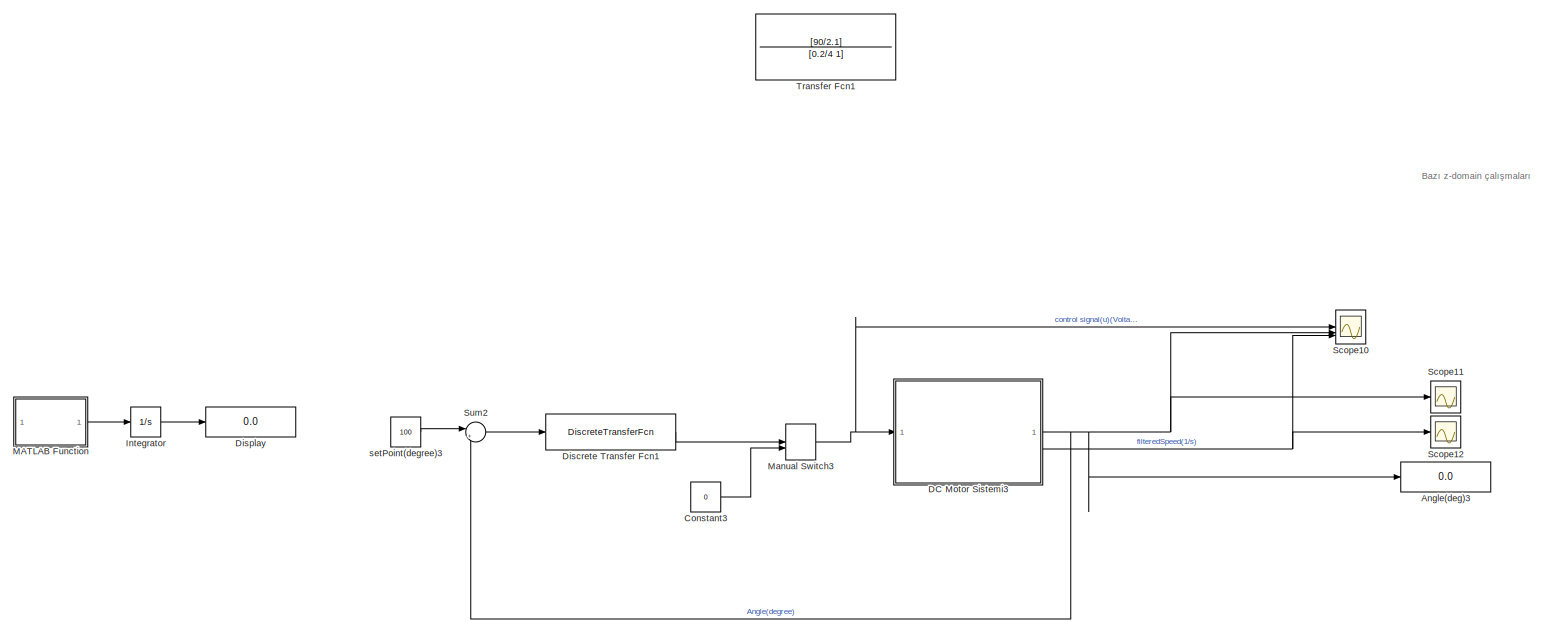
[diagram: root canvas - part 1/8, top left region]
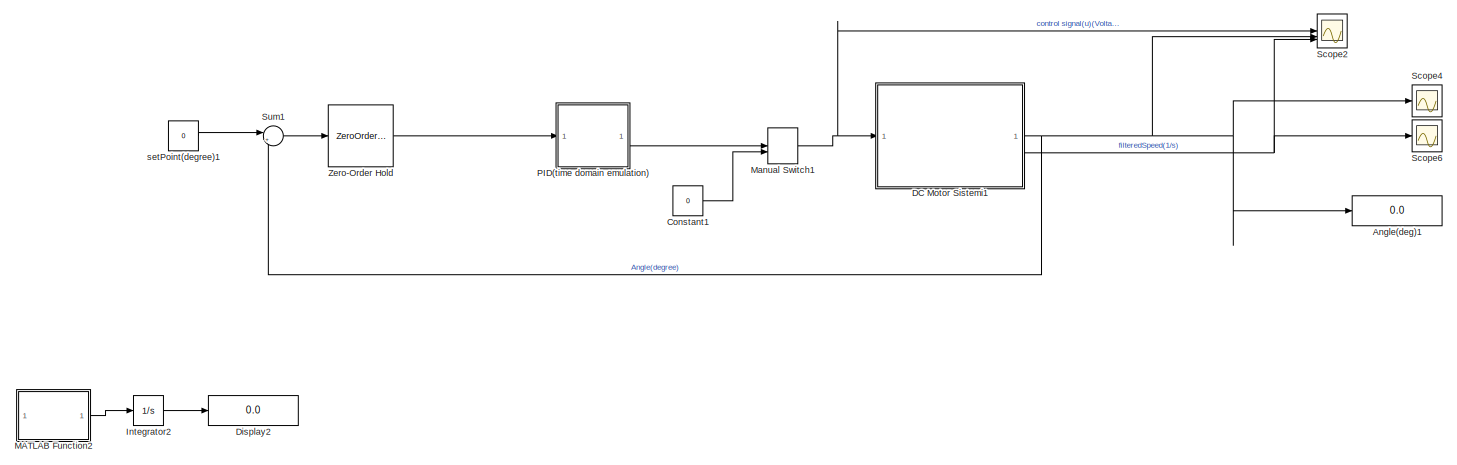
[diagram: root canvas - part 2/8, top center region]
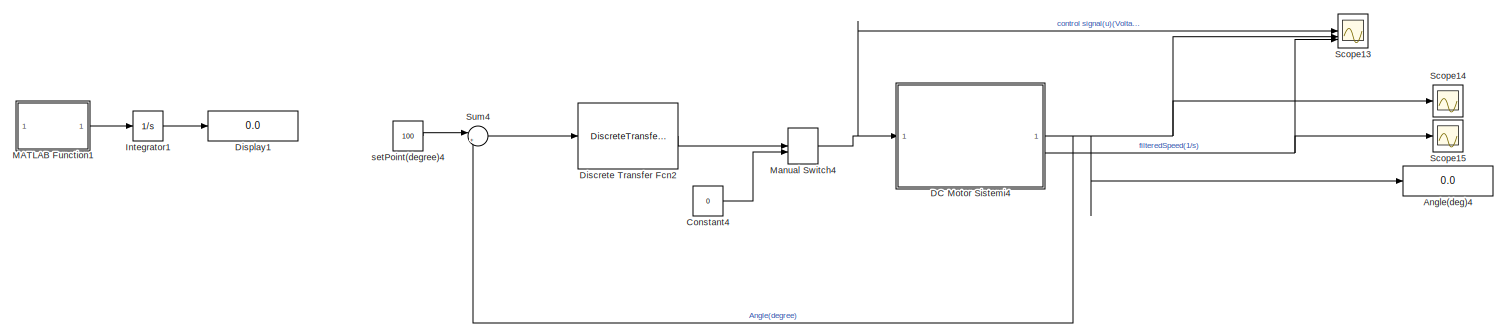
[diagram: root canvas - part 3/8, middle left region]
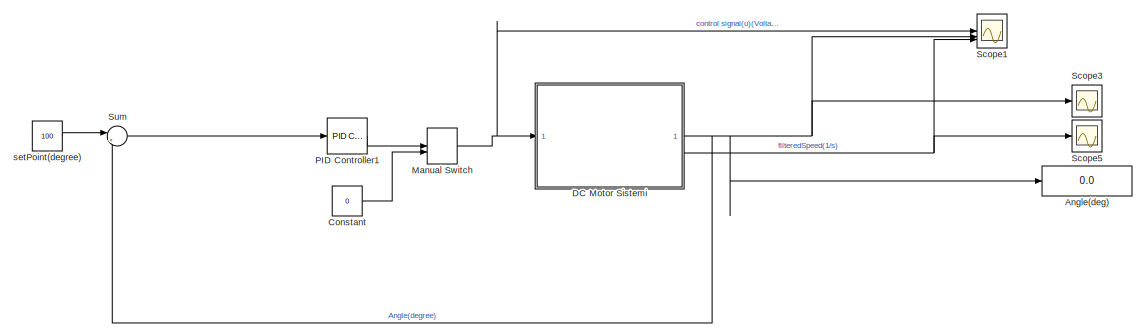
[diagram: root canvas - part 4/8, middle right region]
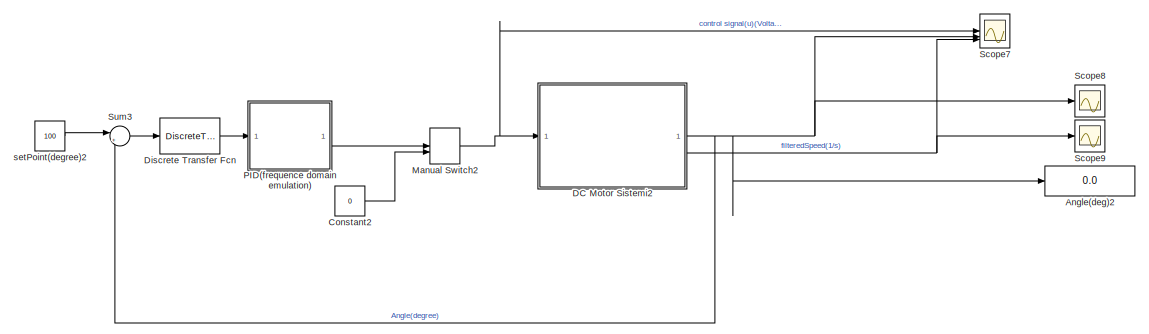
[diagram: root canvas - part 5/8, central region]
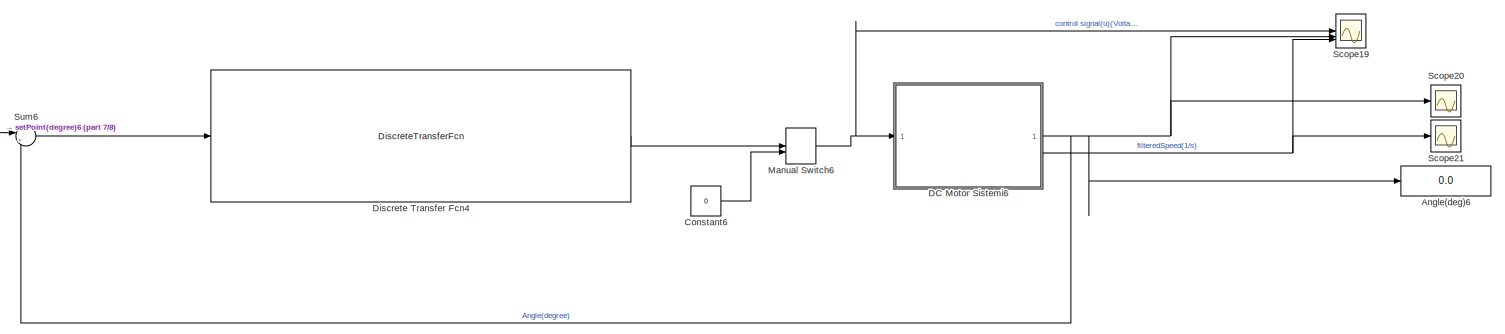
[diagram: root canvas - part 6/8, middle left region]
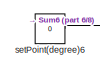
[diagram: root canvas - part 7/8, middle left region]
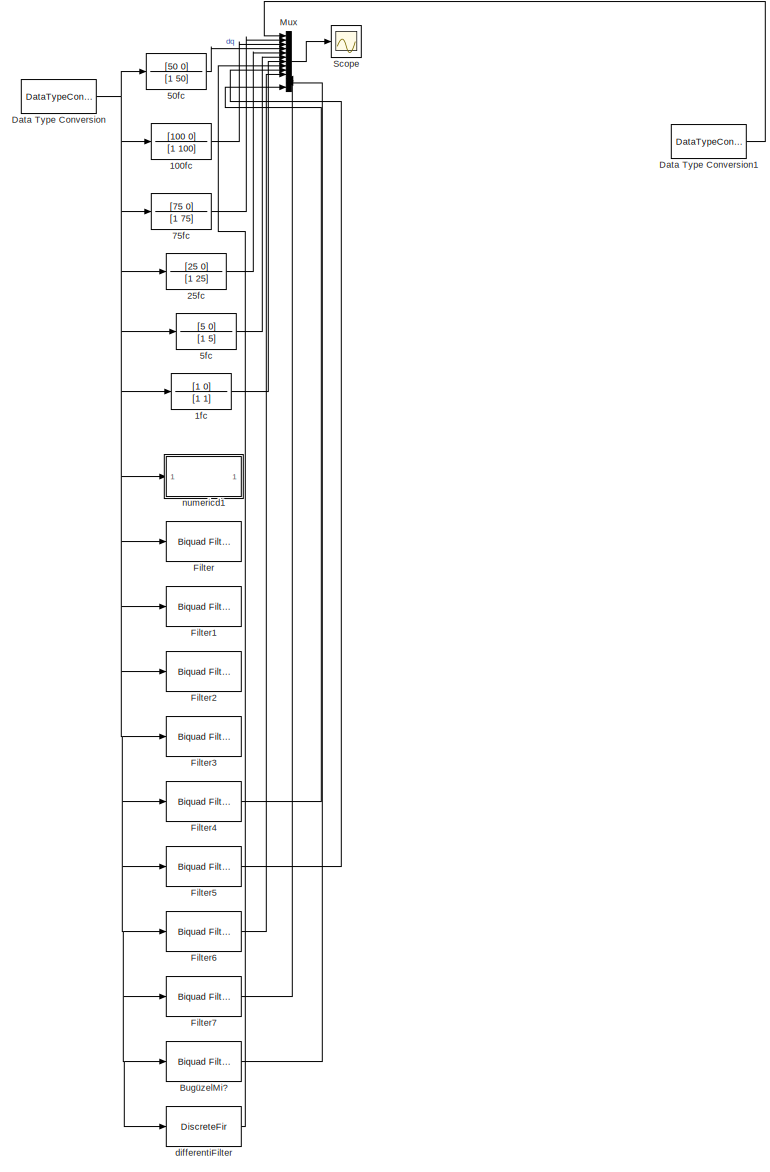
[diagram: root canvas - part 8/8, bottom right region]
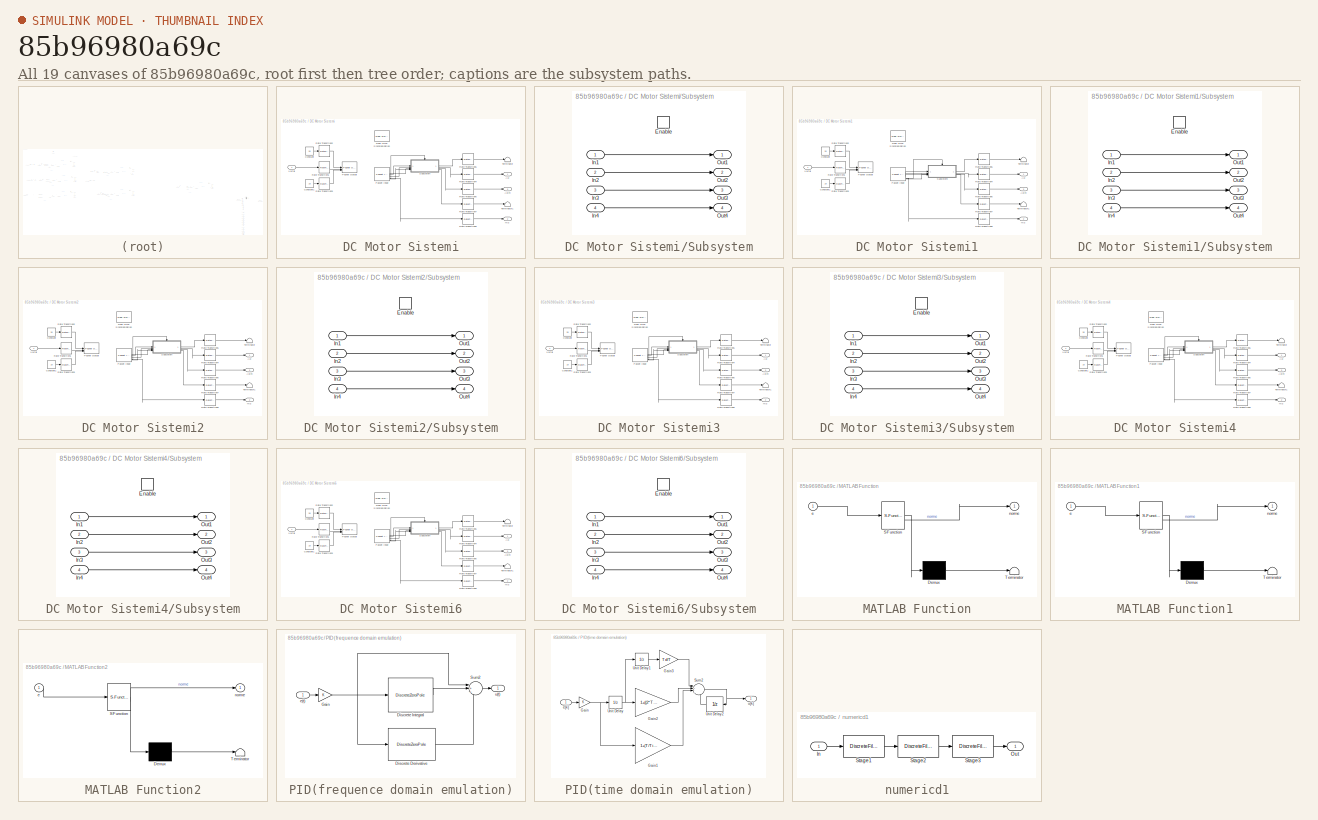
[diagram: thumbnail index - all 19 canvases of the model, root first then tree order]
MODEL slx_85b96980a69c
KIND model
CONFIG AbsTol = auto
CONFIG EnableMultiTasking = off
CONFIG FixedStep = auto
CONFIG InitFcn = usbsetup
CONFIG MaxStep = auto
CONFIG MinStep = auto
CONFIG RelTol = 1e-3
CONFIG SampleTimeConstraint = Unconstrained
CONFIG SolverName = ode5
CONFIG StartTime = 0.0
CONFIG StopTime = inf
BLOCK [TransferFcn] 100fc
  Commented = on
  Denominator = [1 100]
  Numerator = [100 0]
BLOCK [TransferFcn] 1fc
  Commented = on
  Denominator = [1 1]
  Numerator = [1 0]
BLOCK [TransferFcn] 25fc
  Commented = on
  Denominator = [1 25]
  Numerator = [25 0]
BLOCK [TransferFcn] 50fc
  Commented = on
  Denominator = [1 50]
  Numerator = [50 0]
BLOCK [TransferFcn] 5fc
  Commented = on
  Denominator = [1 5]
  Numerator = [5 0]
BLOCK [TransferFcn] 75fc
  Commented = on
  Denominator = [1 75]
  Numerator = [75 0]
BLOCK [Display] Angle(deg)
  Decimation = 1
BLOCK [Display] Angle(deg)1
  Commented = on
  Decimation = 1
BLOCK [Display] Angle(deg)2
  Commented = on
  Decimation = 1
BLOCK [Display] Angle(deg)3
  Commented = on
  Decimation = 1
BLOCK [Display] Angle(deg)4
  Commented = on
  Decimation = 1
BLOCK [Display] Angle(deg)6
  Commented = on
  Decimation = 1
BLOCK [Reference] BugüzelMi?  REF=dsparch4/Biquad Filter
  Commented = on
  SourceBlock = dsparch4/Biquad Filter
  SourceType = Biquad Filter
  Tag = BlockMethodSubSystem
  UserDataPersistent = on
BLOCK [Constant] Constant
  Value = 0
BLOCK [Constant] Constant1
  Commented = on
  Value = 0
BLOCK [Constant] Constant2
  Commented = on
  Value = 0
BLOCK [Constant] Constant3
  Commented = on
  Value = 0
BLOCK [Constant] Constant4
  Commented = on
  Value = 0
BLOCK [Constant] Constant6
  Commented = on
  Value = 0
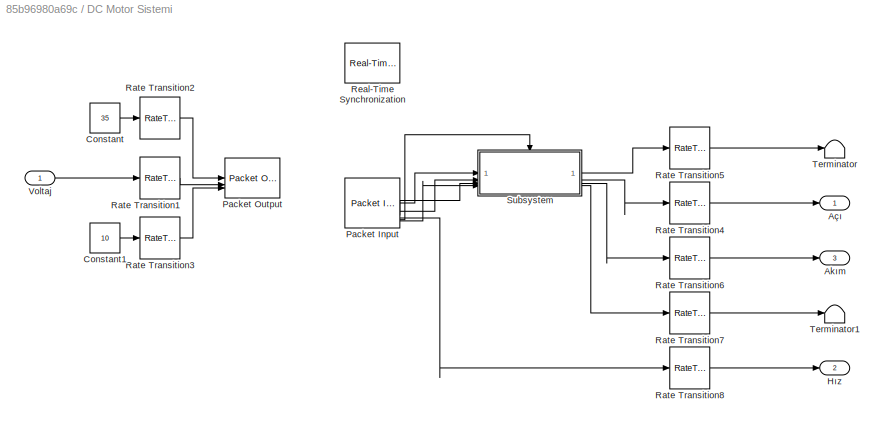
BLOCK [SubSystem] DC Motor Sistemi
BLOCK [Outport] DC Motor Sistemi/Akım
  Port = 3
BLOCK [Outport] DC Motor Sistemi/Açı
BLOCK [Constant] DC Motor Sistemi/Constant
  Value = 35
BLOCK [Constant] DC Motor Sistemi/Constant1
  Value = 10
BLOCK [Outport] DC Motor Sistemi/Hız
  Port = 2
BLOCK [Reference] DC Motor Sistemi/Packet Input  REF=sldrtlib/Packet Input
  AttributesFormatString = Serial Port [4]
  SourceBlock = sldrtlib/Packet Input
  SourceType = Simulink Desktop Real-Time Packet Input
BLOCK [Reference] DC Motor Sistemi/Packet Output  REF=sldrtlib/Packet Output
  AttributesFormatString = Serial Port [4]
  SourceBlock = sldrtlib/Packet Output
  SourceType = Simulink Desktop Real-Time Packet Output
BLOCK [RateTransition] DC Motor Sistemi/Rate Transition1
  OutPortSampleTime = Ts_send
BLOCK [RateTransition] DC Motor Sistemi/Rate Transition2
  OutPortSampleTime = Ts_send
BLOCK [RateTransition] DC Motor Sistemi/Rate Transition3
  OutPortSampleTime = Ts_send
BLOCK [RateTransition] DC Motor Sistemi/Rate Transition4
  OutPortSampleTime = Ts_algo
BLOCK [RateTransition] DC Motor Sistemi/Rate Transition5
  OutPortSampleTime = Ts_algo
BLOCK [RateTransition] DC Motor Sistemi/Rate Transition6
  OutPortSampleTime = Ts_algo
BLOCK [RateTransition] DC Motor Sistemi/Rate Transition7
  OutPortSampleTime = Ts_algo
BLOCK [RateTransition] DC Motor Sistemi/Rate Transition8
  OutPortSampleTime = Ts_algo
BLOCK [Reference] DC Motor Sistemi/Real-Time Synchronization  REF=sldrtlib/Real-Time
Synchronization
  SourceBlock = sldrtlib/Real-Time\nSynchronization
  SourceType = Simulink Desktop Real-Time Synchronization
BLOCK [SubSystem] DC Motor Sistemi/Subsystem
BLOCK [EnablePort] DC Motor Sistemi/Subsystem/Enable
BLOCK [Inport] DC Motor Sistemi/Subsystem/In1
BLOCK [Inport] DC Motor Sistemi/Subsystem/In2
  Port = 2
BLOCK [Inport] DC Motor Sistemi/Subsystem/In3
  Port = 3
BLOCK [Inport] DC Motor Sistemi/Subsystem/In4
  Port = 4
BLOCK [Outport] DC Motor Sistemi/Subsystem/Out1
BLOCK [Outport] DC Motor Sistemi/Subsystem/Out2
  Port = 2
BLOCK [Outport] DC Motor Sistemi/Subsystem/Out3
  Port = 3
BLOCK [Outport] DC Motor Sistemi/Subsystem/Out4
  Port = 4
BLOCK [Terminator] DC Motor Sistemi/Terminator
BLOCK [Terminator] DC Motor Sistemi/Terminator1
BLOCK [Inport] DC Motor Sistemi/Voltaj
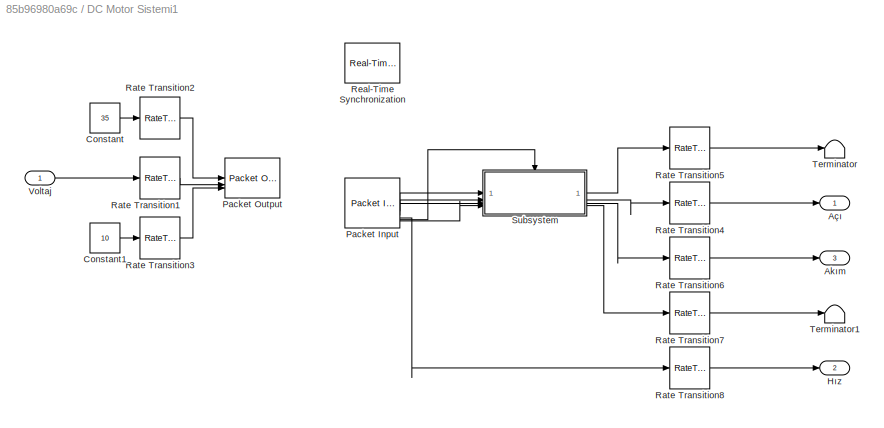
BLOCK [SubSystem] DC Motor Sistemi1
  Commented = on
BLOCK [Outport] DC Motor Sistemi1/Akım
  Port = 3
BLOCK [Outport] DC Motor Sistemi1/Açı
BLOCK [Constant] DC Motor Sistemi1/Constant
  Value = 35
BLOCK [Constant] DC Motor Sistemi1/Constant1
  Value = 10
BLOCK [Outport] DC Motor Sistemi1/Hız
  Port = 2
BLOCK [Reference] DC Motor Sistemi1/Packet Input  REF=sldrtlib/Packet Input
  AttributesFormatString = Serial Port [4]
  SourceBlock = sldrtlib/Packet Input
  SourceType = Simulink Desktop Real-Time Packet Input
BLOCK [Reference] DC Motor Sistemi1/Packet Output  REF=sldrtlib/Packet Output
  AttributesFormatString = Serial Port [4]
  SourceBlock = sldrtlib/Packet Output
  SourceType = Simulink Desktop Real-Time Packet Output
BLOCK [RateTransition] DC Motor Sistemi1/Rate Transition1
  OutPortSampleTime = Ts_send
BLOCK [RateTransition] DC Motor Sistemi1/Rate Transition2
  OutPortSampleTime = Ts_send
BLOCK [RateTransition] DC Motor Sistemi1/Rate Transition3
  OutPortSampleTime = Ts_send
BLOCK [RateTransition] DC Motor Sistemi1/Rate Transition4
  OutPortSampleTime = Ts_algo
BLOCK [RateTransition] DC Motor Sistemi1/Rate Transition5
  OutPortSampleTime = Ts_algo
BLOCK [RateTransition] DC Motor Sistemi1/Rate Transition6
  OutPortSampleTime = Ts_algo
BLOCK [RateTransition] DC Motor Sistemi1/Rate Transition7
  OutPortSampleTime = Ts_algo
BLOCK [RateTransition] DC Motor Sistemi1/Rate Transition8
  OutPortSampleTime = Ts_algo
BLOCK [Reference] DC Motor Sistemi1/Real-Time Synchronization  REF=sldrtlib/Real-Time
Synchronization
  SourceBlock = sldrtlib/Real-Time\nSynchronization
  SourceType = Simulink Desktop Real-Time Synchronization
BLOCK [SubSystem] DC Motor Sistemi1/Subsystem
BLOCK [EnablePort] DC Motor Sistemi1/Subsystem/Enable
BLOCK [Inport] DC Motor Sistemi1/Subsystem/In1
BLOCK [Inport] DC Motor Sistemi1/Subsystem/In2
  Port = 2
BLOCK [Inport] DC Motor Sistemi1/Subsystem/In3
  Port = 3
BLOCK [Inport] DC Motor Sistemi1/Subsystem/In4
  Port = 4
BLOCK [Outport] DC Motor Sistemi1/Subsystem/Out1
BLOCK [Outport] DC Motor Sistemi1/Subsystem/Out2
  Port = 2
BLOCK [Outport] DC Motor Sistemi1/Subsystem/Out3
  Port = 3
BLOCK [Outport] DC Motor Sistemi1/Subsystem/Out4
  Port = 4
BLOCK [Terminator] DC Motor Sistemi1/Terminator
BLOCK [Terminator] DC Motor Sistemi1/Terminator1
BLOCK [Inport] DC Motor Sistemi1/Voltaj
BLOCK [SubSystem] DC Motor Sistemi2
  Commented = on
BLOCK [Outport] DC Motor Sistemi2/Akım
  Port = 3
BLOCK [Outport] DC Motor Sistemi2/Açı
BLOCK [Constant] DC Motor Sistemi2/Constant
  Value = 35
BLOCK [Constant] DC Motor Sistemi2/Constant1
  Value = 10
BLOCK [Outport] DC Motor Sistemi2/Hız
  Port = 2
BLOCK [Reference] DC Motor Sistemi2/Packet Input  REF=sldrtlib/Packet Input
  AttributesFormatString = Serial Port [4]
  SourceBlock = sldrtlib/Packet Input
  SourceType = Simulink Desktop Real-Time Packet Input
BLOCK [Reference] DC Motor Sistemi2/Packet Output  REF=sldrtlib/Packet Output
  AttributesFormatString = Serial Port [4]
  SourceBlock = sldrtlib/Packet Output
  SourceType = Simulink Desktop Real-Time Packet Output
BLOCK [RateTransition] DC Motor Sistemi2/Rate Transition1
  OutPortSampleTime = Ts_send
BLOCK [RateTransition] DC Motor Sistemi2/Rate Transition2
  OutPortSampleTime = Ts_send
BLOCK [RateTransition] DC Motor Sistemi2/Rate Transition3
  OutPortSampleTime = Ts_send
BLOCK [RateTransition] DC Motor Sistemi2/Rate Transition4
  OutPortSampleTime = Ts_algo
BLOCK [RateTransition] DC Motor Sistemi2/Rate Transition5
  OutPortSampleTime = Ts_algo
BLOCK [RateTransition] DC Motor Sistemi2/Rate Transition6
  OutPortSampleTime = Ts_algo
BLOCK [RateTransition] DC Motor Sistemi2/Rate Transition7
  OutPortSampleTime = Ts_algo
BLOCK [RateTransition] DC Motor Sistemi2/Rate Transition8
  OutPortSampleTime = Ts_algo
BLOCK [Reference] DC Motor Sistemi2/Real-Time Synchronization  REF=sldrtlib/Real-Time
Synchronization
  SourceBlock = sldrtlib/Real-Time\nSynchronization
  SourceType = Simulink Desktop Real-Time Synchronization
BLOCK [SubSystem] DC Motor Sistemi2/Subsystem
BLOCK [EnablePort] DC Motor Sistemi2/Subsystem/Enable
BLOCK [Inport] DC Motor Sistemi2/Subsystem/In1
BLOCK [Inport] DC Motor Sistemi2/Subsystem/In2
  Port = 2
BLOCK [Inport] DC Motor Sistemi2/Subsystem/In3
  Port = 3
BLOCK [Inport] DC Motor Sistemi2/Subsystem/In4
  Port = 4
BLOCK [Outport] DC Motor Sistemi2/Subsystem/Out1
BLOCK [Outport] DC Motor Sistemi2/Subsystem/Out2
  Port = 2
BLOCK [Outport] DC Motor Sistemi2/Subsystem/Out3
  Port = 3
BLOCK [Outport] DC Motor Sistemi2/Subsystem/Out4
  Port = 4
BLOCK [Terminator] DC Motor Sistemi2/Terminator
BLOCK [Terminator] DC Motor Sistemi2/Terminator1
BLOCK [Inport] DC Motor Sistemi2/Voltaj
BLOCK [SubSystem] DC Motor Sistemi3
  Commented = on
BLOCK [Outport] DC Motor Sistemi3/Akım
  Port = 3
BLOCK [Outport] DC Motor Sistemi3/Açı
BLOCK [Constant] DC Motor Sistemi3/Constant
  Value = 35
BLOCK [Constant] DC Motor Sistemi3/Constant1
  Value = 10
BLOCK [Outport] DC Motor Sistemi3/Hız
  Port = 2
BLOCK [Reference] DC Motor Sistemi3/Packet Input  REF=sldrtlib/Packet Input
  AttributesFormatString = Serial Port [4]
  SourceBlock = sldrtlib/Packet Input
  SourceType = Simulink Desktop Real-Time Packet Input
BLOCK [Reference] DC Motor Sistemi3/Packet Output  REF=sldrtlib/Packet Output
  AttributesFormatString = Serial Port [4]
  SourceBlock = sldrtlib/Packet Output
  SourceType = Simulink Desktop Real-Time Packet Output
BLOCK [RateTransition] DC Motor Sistemi3/Rate Transition1
  OutPortSampleTime = Ts_send
BLOCK [RateTransition] DC Motor Sistemi3/Rate Transition2
  OutPortSampleTime = Ts_send
BLOCK [RateTransition] DC Motor Sistemi3/Rate Transition3
  OutPortSampleTime = Ts_send
BLOCK [RateTransition] DC Motor Sistemi3/Rate Transition4
  OutPortSampleTime = Ts_algo
BLOCK [RateTransition] DC Motor Sistemi3/Rate Transition5
  OutPortSampleTime = Ts_algo
BLOCK [RateTransition] DC Motor Sistemi3/Rate Transition6
  OutPortSampleTime = Ts_algo
BLOCK [RateTransition] DC Motor Sistemi3/Rate Transition7
  OutPortSampleTime = Ts_algo
BLOCK [RateTransition] DC Motor Sistemi3/Rate Transition8
  OutPortSampleTime = Ts_algo
BLOCK [Reference] DC Motor Sistemi3/Real-Time Synchronization  REF=sldrtlib/Real-Time
Synchronization
  SourceBlock = sldrtlib/Real-Time\nSynchronization
  SourceType = Simulink Desktop Real-Time Synchronization
BLOCK [SubSystem] DC Motor Sistemi3/Subsystem
BLOCK [EnablePort] DC Motor Sistemi3/Subsystem/Enable
BLOCK [Inport] DC Motor Sistemi3/Subsystem/In1
BLOCK [Inport] DC Motor Sistemi3/Subsystem/In2
  Port = 2
BLOCK [Inport] DC Motor Sistemi3/Subsystem/In3
  Port = 3
BLOCK [Inport] DC Motor Sistemi3/Subsystem/In4
  Port = 4
BLOCK [Outport] DC Motor Sistemi3/Subsystem/Out1
BLOCK [Outport] DC Motor Sistemi3/Subsystem/Out2
  Port = 2
BLOCK [Outport] DC Motor Sistemi3/Subsystem/Out3
  Port = 3
BLOCK [Outport] DC Motor Sistemi3/Subsystem/Out4
  Port = 4
BLOCK [Terminator] DC Motor Sistemi3/Terminator
BLOCK [Terminator] DC Motor Sistemi3/Terminator1
BLOCK [Inport] DC Motor Sistemi3/Voltaj
BLOCK [SubSystem] DC Motor Sistemi4
  Commented = on
BLOCK [Outport] DC Motor Sistemi4/Akım
  Port = 3
BLOCK [Outport] DC Motor Sistemi4/Açı
BLOCK [Constant] DC Motor Sistemi4/Constant
  Value = 35
BLOCK [Constant] DC Motor Sistemi4/Constant1
  Value = 10
BLOCK [Outport] DC Motor Sistemi4/Hız
  Port = 2
BLOCK [Reference] DC Motor Sistemi4/Packet Input  REF=sldrtlib/Packet Input
  AttributesFormatString = Serial Port [4]
  SourceBlock = sldrtlib/Packet Input
  SourceType = Simulink Desktop Real-Time Packet Input
BLOCK [Reference] DC Motor Sistemi4/Packet Output  REF=sldrtlib/Packet Output
  AttributesFormatString = Serial Port [4]
  SourceBlock = sldrtlib/Packet Output
  SourceType = Simulink Desktop Real-Time Packet Output
BLOCK [RateTransition] DC Motor Sistemi4/Rate Transition1
  OutPortSampleTime = Ts_send
BLOCK [RateTransition] DC Motor Sistemi4/Rate Transition2
  OutPortSampleTime = Ts_send
BLOCK [RateTransition] DC Motor Sistemi4/Rate Transition3
  OutPortSampleTime = Ts_send
BLOCK [RateTransition] DC Motor Sistemi4/Rate Transition4
  OutPortSampleTime = Ts_algo
BLOCK [RateTransition] DC Motor Sistemi4/Rate Transition5
  OutPortSampleTime = Ts_algo
BLOCK [RateTransition] DC Motor Sistemi4/Rate Transition6
  OutPortSampleTime = Ts_algo
BLOCK [RateTransition] DC Motor Sistemi4/Rate Transition7
  OutPortSampleTime = Ts_algo
BLOCK [RateTransition] DC Motor Sistemi4/Rate Transition8
  OutPortSampleTime = Ts_algo
BLOCK [Reference] DC Motor Sistemi4/Real-Time Synchronization  REF=sldrtlib/Real-Time
Synchronization
  SourceBlock = sldrtlib/Real-Time\nSynchronization
  SourceType = Simulink Desktop Real-Time Synchronization
BLOCK [SubSystem] DC Motor Sistemi4/Subsystem
BLOCK [EnablePort] DC Motor Sistemi4/Subsystem/Enable
BLOCK [Inport] DC Motor Sistemi4/Subsystem/In1
BLOCK [Inport] DC Motor Sistemi4/Subsystem/In2
  Port = 2
BLOCK [Inport] DC Motor Sistemi4/Subsystem/In3
  Port = 3
BLOCK [Inport] DC Motor Sistemi4/Subsystem/In4
  Port = 4
BLOCK [Outport] DC Motor Sistemi4/Subsystem/Out1
BLOCK [Outport] DC Motor Sistemi4/Subsystem/Out2
  Port = 2
BLOCK [Outport] DC Motor Sistemi4/Subsystem/Out3
  Port = 3
BLOCK [Outport] DC Motor Sistemi4/Subsystem/Out4
  Port = 4
BLOCK [Terminator] DC Motor Sistemi4/Terminator
BLOCK [Terminator] DC Motor Sistemi4/Terminator1
BLOCK [Inport] DC Motor Sistemi4/Voltaj
BLOCK [SubSystem] DC Motor Sistemi6
  Commented = on
BLOCK [Outport] DC Motor Sistemi6/Akım
  Port = 3
BLOCK [Outport] DC Motor Sistemi6/Açı
BLOCK [Constant] DC Motor Sistemi6/Constant
  Value = 35
BLOCK [Constant] DC Motor Sistemi6/Constant1
  Value = 10
BLOCK [Outport] DC Motor Sistemi6/Hız
  Port = 2
BLOCK [Reference] DC Motor Sistemi6/Packet Input  REF=sldrtlib/Packet Input
  AttributesFormatString = Serial Port [4]
  SourceBlock = sldrtlib/Packet Input
  SourceType = Simulink Desktop Real-Time Packet Input
BLOCK [Reference] DC Motor Sistemi6/Packet Output  REF=sldrtlib/Packet Output
  AttributesFormatString = Serial Port [4]
  SourceBlock = sldrtlib/Packet Output
  SourceType = Simulink Desktop Real-Time Packet Output
BLOCK [RateTransition] DC Motor Sistemi6/Rate Transition1
  OutPortSampleTime = Ts_send
BLOCK [RateTransition] DC Motor Sistemi6/Rate Transition2
  OutPortSampleTime = Ts_send
BLOCK [RateTransition] DC Motor Sistemi6/Rate Transition3
  OutPortSampleTime = Ts_send
BLOCK [RateTransition] DC Motor Sistemi6/Rate Transition4
  OutPortSampleTime = Ts_algo
BLOCK [RateTransition] DC Motor Sistemi6/Rate Transition5
  OutPortSampleTime = Ts_algo
BLOCK [RateTransition] DC Motor Sistemi6/Rate Transition6
  OutPortSampleTime = Ts_algo
BLOCK [RateTransition] DC Motor Sistemi6/Rate Transition7
  OutPortSampleTime = Ts_algo
BLOCK [RateTransition] DC Motor Sistemi6/Rate Transition8
  OutPortSampleTime = Ts_algo
BLOCK [Reference] DC Motor Sistemi6/Real-Time Synchronization  REF=sldrtlib/Real-Time
Synchronization
  SourceBlock = sldrtlib/Real-Time\nSynchronization
  SourceType = Simulink Desktop Real-Time Synchronization
BLOCK [SubSystem] DC Motor Sistemi6/Subsystem
BLOCK [EnablePort] DC Motor Sistemi6/Subsystem/Enable
BLOCK [Inport] DC Motor Sistemi6/Subsystem/In1
BLOCK [Inport] DC Motor Sistemi6/Subsystem/In2
  Port = 2
BLOCK [Inport] DC Motor Sistemi6/Subsystem/In3
  Port = 3
BLOCK [Inport] DC Motor Sistemi6/Subsystem/In4
  Port = 4
BLOCK [Outport] DC Motor Sistemi6/Subsystem/Out1
BLOCK [Outport] DC Motor Sistemi6/Subsystem/Out2
  Port = 2
BLOCK [Outport] DC Motor Sistemi6/Subsystem/Out3
  Port = 3
BLOCK [Outport] DC Motor Sistemi6/Subsystem/Out4
  Port = 4
BLOCK [Terminator] DC Motor Sistemi6/Terminator
BLOCK [Terminator] DC Motor Sistemi6/Terminator1
BLOCK [Inport] DC Motor Sistemi6/Voltaj
BLOCK [DataTypeConversion] Data Type Conversion
  Commented = on
  OutDataTypeStr = double
  RndMeth = Floor
  SaturateOnIntegerOverflow = off
BLOCK [DataTypeConversion] Data Type Conversion1
  Commented = on
  OutDataTypeStr = double
  RndMeth = Floor
  SaturateOnIntegerOverflow = off
BLOCK [DiscreteTransferFcn] Discrete Transfer Fcn
  Commented = on
  Denominator = [1 (1-0.2)]
  InputPortMap = u0
  Numerator = [2 -0.2]
BLOCK [DiscreteTransferFcn] Discrete Transfer Fcn1
  Commented = on
  Denominator = [1 (-zp)]
  InputPortMap = u0
  Numerator = [(Kd) (-Kd*z0)]
  SampleTime = T
BLOCK [DiscreteTransferFcn] Discrete Transfer Fcn2
  Commented = on
  Denominator = [1 -0.7]
  InputPortMap = u0
  Numerator = [37.5 -37.2]
  SampleTime = T
BLOCK [DiscreteTransferFcn] Discrete Transfer Fcn4
  Commented = on
  Denominator = [Dz.denominator{1,1}]
  InputPortMap = u0
  Numerator = [Dz.numerator{1,1}]
  SampleTime = T
BLOCK [Display] Display
  Commented = on
  Decimation = 1
BLOCK [Display] Display1
  Commented = on
  Decimation = 1
BLOCK [Display] Display2
  Commented = on
  Decimation = 1
BLOCK [Reference] Filter  REF=dsparch4/Biquad Filter
  Commented = on
  SourceBlock = dsparch4/Biquad Filter
  SourceType = Biquad Filter
  Tag = BlockMethodSubSystem
  UserDataPersistent = on
BLOCK [Reference] Filter1  REF=dsparch4/Biquad Filter
  Commented = on
  SourceBlock = dsparch4/Biquad Filter
  SourceType = Biquad Filter
  Tag = BlockMethodSubSystem
  UserDataPersistent = on
BLOCK [Reference] Filter2  REF=dsparch4/Biquad Filter
  Commented = on
  SourceBlock = dsparch4/Biquad Filter
  SourceType = Biquad Filter
  Tag = BlockMethodSubSystem
  UserDataPersistent = on
BLOCK [Reference] Filter3  REF=dsparch4/Biquad Filter
  Commented = on
  SourceBlock = dsparch4/Biquad Filter
  SourceType = Biquad Filter
  Tag = BlockMethodSubSystem
  UserDataPersistent = on
BLOCK [Reference] Filter4  REF=dsparch4/Biquad Filter
  Commented = on
  SourceBlock = dsparch4/Biquad Filter
  SourceType = Biquad Filter
  Tag = BlockMethodSubSystem
  UserDataPersistent = on
BLOCK [Reference] Filter5  REF=dsparch4/Biquad Filter
  Commented = on
  SourceBlock = dsparch4/Biquad Filter
  SourceType = Biquad Filter
  Tag = BlockMethodSubSystem
  UserDataPersistent = on
BLOCK [Reference] Filter6  REF=dsparch4/Biquad Filter
  Commented = on
  SourceBlock = dsparch4/Biquad Filter
  SourceType = Biquad Filter
  Tag = BlockMethodSubSystem
  UserDataPersistent = on
BLOCK [Reference] Filter7  REF=dsparch4/Biquad Filter
  Commented = on
  SourceBlock = dsparch4/Biquad Filter
  SourceType = Biquad Filter
  Tag = BlockMethodSubSystem
  UserDataPersistent = on
BLOCK [Integrator] Integrator
  Commented = on
BLOCK [Integrator] Integrator1
  Commented = on
BLOCK [Integrator] Integrator2
  Commented = on
BLOCK [SubSystem] MATLAB Function
  Commented = on
  ErrorFcn = Stateflow.Translate.translate
  PermitHierarchicalResolution = ExplicitOnly
  SFBlockType = MATLAB Function
  TreatAsAtomicUnit = on
BLOCK [Demux] MATLAB Function/ Demux 
  Outputs = 1
BLOCK [S-Function] MATLAB Function/ SFunction 
  EnableBusSupport = on
  FunctionName = sf_sfun
  PortCounts = [1 2]
  SFcnIsStateOwnerBlock = off
  SFunctionDeploymentMode = off
  Tag = Stateflow S-Function 2
BLOCK [Terminator] MATLAB Function/ Terminator 
BLOCK [Inport] MATLAB Function/e
BLOCK [Outport] MATLAB Function/norme
  VectorParamsAs1DForOutWhenUnconnected = off
BLOCK [SubSystem] MATLAB Function1
  Commented = on
  ErrorFcn = Stateflow.Translate.translate
  PermitHierarchicalResolution = ExplicitOnly
  SFBlockType = MATLAB Function
  TreatAsAtomicUnit = on
BLOCK [Demux] MATLAB Function1/ Demux 
  Outputs = 1
BLOCK [S-Function] MATLAB Function1/ SFunction 
  EnableBusSupport = on
  FunctionName = sf_sfun
  PortCounts = [1 2]
  SFcnIsStateOwnerBlock = off
  SFunctionDeploymentMode = off
  Tag = Stateflow S-Function 1
BLOCK [Terminator] MATLAB Function1/ Terminator 
BLOCK [Inport] MATLAB Function1/e
BLOCK [Outport] MATLAB Function1/norme
  VectorParamsAs1DForOutWhenUnconnected = off
BLOCK [SubSystem] MATLAB Function2
  Commented = on
  ErrorFcn = Stateflow.Translate.translate
  PermitHierarchicalResolution = ExplicitOnly
  SFBlockType = MATLAB Function
  TreatAsAtomicUnit = on
BLOCK [Demux] MATLAB Function2/ Demux 
  Outputs = 1
BLOCK [S-Function] MATLAB Function2/ SFunction 
  EnableBusSupport = on
  FunctionName = sf_sfun
  PortCounts = [1 2]
  SFcnIsStateOwnerBlock = off
  SFunctionDeploymentMode = off
  Tag = Stateflow S-Function 3
BLOCK [Terminator] MATLAB Function2/ Terminator 
BLOCK [Inport] MATLAB Function2/e
BLOCK [Outport] MATLAB Function2/norme
  VectorParamsAs1DForOutWhenUnconnected = off
BLOCK [ManualSwitch] Manual Switch
  CurrentSetting = 0
BLOCK [ManualSwitch] Manual Switch1
  Commented = on
  CurrentSetting = 0
BLOCK [ManualSwitch] Manual Switch2
  Commented = on
  CurrentSetting = 0
BLOCK [ManualSwitch] Manual Switch3
  Commented = on
  CurrentSetting = 0
BLOCK [ManualSwitch] Manual Switch4
  Commented = on
  CurrentSetting = 0
BLOCK [ManualSwitch] Manual Switch6
  Commented = on
  CurrentSetting = 0
BLOCK [Mux] Mux
  Commented = on
  DisplayOption = bar
  Inputs = 13
BLOCK [Reference] PID Controller1  REF=slpidlib/PID Controller
  LibrarySourceBlock = simulink/Continuous/PID Controller
  SourceBlock = slpidlib/PID Controller
  SourceType = PID 1dof
BLOCK [SubSystem] PID(frequence domain emulation)
  Commented = on
BLOCK [DiscreteZeroPole] PID(frequence domain emulation)/Discrete Derivative
  Gain = ((2*Td)/T)
  Poles = [-1]
  SampleTime = -1
BLOCK [DiscreteZeroPole] PID(frequence domain emulation)/Discrete Integral
  Gain = (T/(2*Ti))
  Poles = [1]
  SampleTime = -1
  Zeros = [-1]
BLOCK [Gain] PID(frequence domain emulation)/Gain
  Gain = K
BLOCK [Sum] PID(frequence domain emulation)/Sum2
  Inputs = |+++
BLOCK [Inport] PID(frequence domain emulation)/e(t)
BLOCK [Outport] PID(frequence domain emulation)/u(t)
BLOCK [SubSystem] PID(time domain emulation)
  Commented = on
BLOCK [Gain] PID(time domain emulation)/Gain
  Gain = K
BLOCK [Gain] PID(time domain emulation)/Gain1
  Gain = 1+(T/Ti)+(Td/T)
BLOCK [Gain] PID(time domain emulation)/Gain2
  Gain = 1+((2*Td)/T)
BLOCK [Gain] PID(time domain emulation)/Gain3
  Gain = Td/T
BLOCK [Sum] PID(time domain emulation)/Sum2
  Inputs = |+-++
BLOCK [UnitDelay] PID(time domain emulation)/Unit Delay
  HasFrameUpgradeWarning = on
  SampleTime = -1
BLOCK [UnitDelay] PID(time domain emulation)/Unit Delay1
  HasFrameUpgradeWarning = on
  SampleTime = -1
BLOCK [UnitDelay] PID(time domain emulation)/Unit Delay2
  HasFrameUpgradeWarning = on
  NameLocation = top
  SampleTime = -1
BLOCK [Inport] PID(time domain emulation)/e[k]
BLOCK [Outport] PID(time domain emulation)/u[k]
BLOCK [Scope] Scope
  Commented = on
  Floating = off
  NumInputPorts = 1
  ScopeSpecificationString = Simulink.scopes.TimeScopeBlockCfg('CurrentConfiguration', extmgr.ConfigurationSet(extmgr.Configuration('Core','General UI',true),extmgr.Configuration('Core','Source UI',true),extmgr.Configuration('Sources','WiredSimulink',true),extmgr.Configuration('Visuals','Time Domain',true,'SerializedDisplays',{struct('MinYLimReal','-162.55255','MaxYLimReal','248.41624','YLabelReal','','MinYLimMag',' 0.00000',...<+1858ch>
BLOCK [Scope] Scope1
  Floating = off
  NumInputPorts = 3
  ScopeSpecificationString = Simulink.scopes.TimeScopeBlockCfg('CurrentConfiguration', extmgr.ConfigurationSet(extmgr.Configuration('Core','General UI',true),extmgr.Configuration('Core','Source UI',true),extmgr.Configuration('Sources','WiredSimulink',true,'DataLoggingVariableName','ScopeData1'),extmgr.Configuration('Visuals','Time Domain',true,'SerializedDisplays',{struct('MinYLimReal','-7.5','MaxYLimReal','7.5','YLabelReal',...<+2772ch>  <repeated x4 — deduplicated; at blocks: Scope1, Scope10, Scope13, Scope2>
BLOCK [Scope] Scope10
  Commented = on
  Floating = off
  NumInputPorts = 3
BLOCK [Scope] Scope11
  Commented = on
  Floating = off
  NumInputPorts = 1
  ScopeSpecificationString = Simulink.scopes.TimeScopeBlockCfg('CurrentConfiguration', extmgr.ConfigurationSet(extmgr.Configuration('Core','General UI',true),extmgr.Configuration('Core','Source UI',true),extmgr.Configuration('Sources','WiredSimulink',true,'DataLoggingVariableName','ScopeData2'),extmgr.Configuration('Visuals','Time Domain',true,'SerializedDisplays',{struct('MinYLimReal','0.00784','MaxYLimReal','103.44143','YLa...<+1743ch>
BLOCK [Scope] Scope12
  Commented = on
  Floating = off
  NumInputPorts = 1
  ScopeSpecificationString = Simulink.scopes.TimeScopeBlockCfg('CurrentConfiguration', extmgr.ConfigurationSet(extmgr.Configuration('Core','General UI',true),extmgr.Configuration('Core','Source UI',true),extmgr.Configuration('Sources','WiredSimulink',true,'DataLoggingVariableName','ScopeData3'),extmgr.Configuration('Visuals','Time Domain',true,'SerializedDisplays',{struct('MinYLimReal','-10.63549','MaxYLimReal','95.69588','YL...<+1687ch>  <repeated x3 — deduplicated; at blocks: Scope12, Scope15, Scope6>
BLOCK [Scope] Scope13
  Commented = on
  Floating = off
  NumInputPorts = 3
BLOCK [Scope] Scope14
  Commented = on
  Floating = off
  NumInputPorts = 1
  ScopeSpecificationString = Simulink.scopes.TimeScopeBlockCfg('CurrentConfiguration', extmgr.ConfigurationSet(extmgr.Configuration('Core','General UI',true),extmgr.Configuration('Core','Source UI',true),extmgr.Configuration('Sources','WiredSimulink',true,'DataLoggingVariableName','ScopeData2'),extmgr.Configuration('Visuals','Time Domain',true,'SerializedDisplays',{struct('MinYLimReal','-44.04942','MaxYLimReal','105.73191','Y...<+1750ch>
BLOCK [Scope] Scope15
  Commented = on
  Floating = off
  NumInputPorts = 1
BLOCK [Scope] Scope19
  Commented = on
  Floating = off
  NumInputPorts = 3
  ScopeSpecificationString = Simulink.scopes.TimeScopeBlockCfg('CurrentConfiguration', extmgr.ConfigurationSet(extmgr.Configuration('Core','General UI',true),extmgr.Configuration('Core','Source UI',true),extmgr.Configuration('Sources','WiredSimulink',true,'DataLoggingVariableName','ScopeData4'),extmgr.Configuration('Visuals','Time Domain',true,'SerializedDisplays',{struct('MinYLimReal','-7.5','MaxYLimReal','7.5','YLabelReal',...<+2772ch>
BLOCK [Scope] Scope2
  Commented = on
  Floating = off
  NumInputPorts = 3
BLOCK [Scope] Scope20
  Commented = on
  Floating = off
  NumInputPorts = 1
  ScopeSpecificationString = Simulink.scopes.TimeScopeBlockCfg('CurrentConfiguration', extmgr.ConfigurationSet(extmgr.Configuration('Core','General UI',true),extmgr.Configuration('Core','Source UI',true),extmgr.Configuration('Sources','WiredSimulink',true,'DataLoggingVariableName','ScopeData5'),extmgr.Configuration('Visuals','Time Domain',true,'SerializedDisplays',{struct('MinYLimReal','-44.04942','MaxYLimReal','105.73191','Y...<+1750ch>
BLOCK [Scope] Scope21
  Commented = on
  Floating = off
  NumInputPorts = 1
  ScopeSpecificationString = Simulink.scopes.TimeScopeBlockCfg('CurrentConfiguration', extmgr.ConfigurationSet(extmgr.Configuration('Core','General UI',true),extmgr.Configuration('Core','Source UI',true),extmgr.Configuration('Sources','WiredSimulink',true,'DataLoggingVariableName','ScopeData6'),extmgr.Configuration('Visuals','Time Domain',true,'SerializedDisplays',{struct('MinYLimReal','-10.63549','MaxYLimReal','95.69588','YL...<+1687ch>
BLOCK [Scope] Scope3
  Floating = off
  NumInputPorts = 1
  ScopeSpecificationString = Simulink.scopes.TimeScopeBlockCfg('CurrentConfiguration', extmgr.ConfigurationSet(extmgr.Configuration('Core','General UI',true),extmgr.Configuration('Core','Source UI',true),extmgr.Configuration('Sources','WiredSimulink',true,'DataLoggingVariableName','ScopeData1'),extmgr.Configuration('Visuals','Time Domain',true,'SerializedDisplays',{struct('MinYLimReal','-9.86031','MaxYLimReal','137.06039','YL...<+1745ch>
BLOCK [Scope] Scope4
  Commented = on
  Floating = off
  NumInputPorts = 1
  ScopeSpecificationString = Simulink.scopes.TimeScopeBlockCfg('CurrentConfiguration', extmgr.ConfigurationSet(extmgr.Configuration('Core','General UI',true),extmgr.Configuration('Core','Source UI',true),extmgr.Configuration('Sources','WiredSimulink',true,'DataLoggingVariableName','ScopeData2'),extmgr.Configuration('Visuals','Time Domain',true,'SerializedDisplays',{struct('MinYLimReal','-1795.21469','MaxYLimReal','377.76838',...<+1499ch>
BLOCK [Scope] Scope5
  Floating = off
  NumInputPorts = 1
  ScopeSpecificationString = Simulink.scopes.TimeScopeBlockCfg('CurrentConfiguration', extmgr.ConfigurationSet(extmgr.Configuration('Core','General UI',true),extmgr.Configuration('Core','Source UI',true),extmgr.Configuration('Sources','WiredSimulink',true,'DataLoggingVariableName','ScopeData1'),extmgr.Configuration('Visuals','Time Domain',true,'SerializedDisplays',{struct('MinYLimReal','-10.63549','MaxYLimReal','95.69588','YL...<+1687ch>
BLOCK [Scope] Scope6
  Commented = on
  Floating = off
  NumInputPorts = 1
BLOCK [Scope] Scope7
  Commented = on
  Floating = off
  NumInputPorts = 3
  ScopeSpecificationString = Simulink.scopes.TimeScopeBlockCfg('CurrentConfiguration', extmgr.ConfigurationSet(extmgr.Configuration('Core','General UI',true),extmgr.Configuration('Core','Source UI',true),extmgr.Configuration('Sources','WiredSimulink',true,'DataLoggingVariableName','ScopeData4'),extmgr.Configuration('Visuals','Time Domain',true,'SerializedDisplays',{struct('MinYLimReal','-7.5','MaxYLimReal','7.5','YLabelReal',...<+2772ch>
BLOCK [Scope] Scope8
  Commented = on
  Floating = off
  NumInputPorts = 1
  ScopeSpecificationString = Simulink.scopes.TimeScopeBlockCfg('CurrentConfiguration', extmgr.ConfigurationSet(extmgr.Configuration('Core','General UI',true),extmgr.Configuration('Core','Source UI',true),extmgr.Configuration('Sources','WiredSimulink',true,'DataLoggingVariableName','ScopeData5'),extmgr.Configuration('Visuals','Time Domain',true,'SerializedDisplays',{struct('MinYLimReal','-34.0119','MaxYLimReal','145.6771','YLa...<+1441ch>
BLOCK [Scope] Scope9
  Commented = on
  Floating = off
  NumInputPorts = 1
  ScopeSpecificationString = Simulink.scopes.TimeScopeBlockCfg('CurrentConfiguration', extmgr.ConfigurationSet(extmgr.Configuration('Core','General UI',true),extmgr.Configuration('Core','Source UI',true),extmgr.Configuration('Sources','WiredSimulink',true,'DataLoggingVariableName','ScopeData6'),extmgr.Configuration('Visuals','Time Domain',true,'SerializedDisplays',{struct('MinYLimReal','-10.63549','MaxYLimReal','95.69588','YL...<+1687ch>
BLOCK [Sum] Sum
  Inputs = |+-
BLOCK [Sum] Sum1
  Commented = on
  Inputs = |+-
BLOCK [Sum] Sum2
  Commented = on
  Inputs = |+-
BLOCK [Sum] Sum3
  Commented = on
  Inputs = |+-
BLOCK [Sum] Sum4
  Commented = on
  Inputs = |+-
BLOCK [Sum] Sum6
  Commented = on
  Inputs = |+-
BLOCK [TransferFcn] Transfer Fcn1
  Commented = on
  Denominator = [0.2/4 1]
  Numerator = [90/2.1]
BLOCK [ZeroOrderHold] Zero-Order Hold
  Commented = on
  SampleTime = T
BLOCK [DiscreteFir] differentiFilter
  Coefficients = [0.10162245249798578 0.462115751014000098 -0.462115751014000098 -0.10162245249798578]
  Commented = on
  InputPortMap = u0
  InputProcessing = Columns as channels (frame based)
  OutputPortMap = o0
  Tag = BlockMethodSubSystem
BLOCK [SubSystem] numericd1
  Commented = on
  Tag = BlockMethodSubSystem
BLOCK [Inport] numericd1/In
BLOCK [Outport] numericd1/Out
BLOCK [DiscreteFilter] numericd1/Stage1
  Denominator = [1 1.63889042744449531 0.782999413525199861]
  InputPortMap = u0
  InputProcessing = Columns as channels (frame based)
  Numerator = [0.0360272465201760816 -0.0720544930403521633 0.0360272465201760816]
  Tag = BlockMethodSubSystem
  a0EqualsOne = on
BLOCK [DiscreteFilter] numericd1/Stage2
  Denominator = [1 1.39413928992720826 0.516727106758841703]
  InputPortMap = u0
  InputProcessing = Columns as channels (frame based)
  Numerator = [0.0306469542079083335 -0.0612939084158166669 0.0306469542079083335]
  Tag = BlockMethodSubSystem
  a0EqualsOne = on
BLOCK [DiscreteFilter] numericd1/Stage3
  Denominator = [1 0.659452728771293573]
  InputPortMap = u0
  InputProcessing = Columns as channels (frame based)
  Numerator = [0.170273635614353186 -0.170273635614353186]
  Tag = BlockMethodSubSystem
  a0EqualsOne = on
BLOCK [Constant] setPoint(degree)
  Value = 100
BLOCK [Constant] setPoint(degree)1
  Commented = on
  Value = 0
BLOCK [Constant] setPoint(degree)2
  Commented = on
  Value = 100
BLOCK [Constant] setPoint(degree)3
  Commented = on
  Value = 100
BLOCK [Constant] setPoint(degree)4
  Commented = on
  Value = 100
BLOCK [Constant] setPoint(degree)6
  Commented = on
  Value = 0
ANNOTATION (root): Bazı z-domain çalışmaları
LINE 100fc:1 -> Mux:3
LINE 1fc:1 -> Mux:7
LINE 25fc:1 -> Mux:5
LINE 50fc:1 -> Mux:4
LINE 5fc:1 -> Mux:6
LINE 75fc:1 -> Mux:2
LINE BugüzelMi?:1 -> Mux:12
LINE Constant1:1 -> Manual Switch1:2
LINE Constant2:1 -> Manual Switch2:2
LINE Constant3:1 -> Manual Switch3:2
LINE Constant4:1 -> Manual Switch4:2
LINE Constant6:1 -> Manual Switch6:2
LINE Constant:1 -> Manual Switch:2
LINE DC Motor Sistemi/Constant1:1 -> DC Motor Sistemi/Rate Transition3:1
LINE DC Motor Sistemi/Constant:1 -> DC Motor Sistemi/Rate Transition2:1
LINE DC Motor Sistemi/Packet Input:1 -> DC Motor Sistemi/Subsystem:1
LINE DC Motor Sistemi/Packet Input:2 -> DC Motor Sistemi/Subsystem:2
LINE DC Motor Sistemi/Packet Input:3 -> DC Motor Sistemi/Subsystem:3
LINE DC Motor Sistemi/Packet Input:4 -> DC Motor Sistemi/Rate Transition8:1
LINE DC Motor Sistemi/Packet Input:5 -> DC Motor Sistemi/Subsystem:enable
LINE DC Motor Sistemi/Packet Input:6 -> DC Motor Sistemi/Subsystem:4
LINE DC Motor Sistemi/Rate Transition1:1 -> DC Motor Sistemi/Packet Output:2
LINE DC Motor Sistemi/Rate Transition2:1 -> DC Motor Sistemi/Packet Output:1
LINE DC Motor Sistemi/Rate Transition3:1 -> DC Motor Sistemi/Packet Output:3
LINE DC Motor Sistemi/Rate Transition4:1 -> DC Motor Sistemi/Açı:1
LINE DC Motor Sistemi/Rate Transition5:1 -> DC Motor Sistemi/Terminator:1
LINE DC Motor Sistemi/Rate Transition6:1 -> DC Motor Sistemi/Akım:1
LINE DC Motor Sistemi/Rate Transition7:1 -> DC Motor Sistemi/Terminator1:1
LINE DC Motor Sistemi/Rate Transition8:1 -> DC Motor Sistemi/Hız:1
LINE DC Motor Sistemi/Subsystem/In1:1 -> DC Motor Sistemi/Subsystem/Out1:1
LINE DC Motor Sistemi/Subsystem/In2:1 -> DC Motor Sistemi/Subsystem/Out2:1
LINE DC Motor Sistemi/Subsystem/In3:1 -> DC Motor Sistemi/Subsystem/Out3:1
LINE DC Motor Sistemi/Subsystem/In4:1 -> DC Motor Sistemi/Subsystem/Out4:1
LINE DC Motor Sistemi/Subsystem:1 -> DC Motor Sistemi/Rate Transition5:1
LINE DC Motor Sistemi/Subsystem:2 -> DC Motor Sistemi/Rate Transition4:1
LINE DC Motor Sistemi/Subsystem:3 -> DC Motor Sistemi/Rate Transition6:1
LINE DC Motor Sistemi/Subsystem:4 -> DC Motor Sistemi/Rate Transition7:1
LINE DC Motor Sistemi/Voltaj:1 -> DC Motor Sistemi/Rate Transition1:1
LINE DC Motor Sistemi1/Constant1:1 -> DC Motor Sistemi1/Rate Transition3:1
LINE DC Motor Sistemi1/Constant:1 -> DC Motor Sistemi1/Rate Transition2:1
LINE DC Motor Sistemi1/Packet Input:1 -> DC Motor Sistemi1/Subsystem:1
LINE DC Motor Sistemi1/Packet Input:2 -> DC Motor Sistemi1/Subsystem:2
LINE DC Motor Sistemi1/Packet Input:3 -> DC Motor Sistemi1/Subsystem:3
LINE DC Motor Sistemi1/Packet Input:4 -> DC Motor Sistemi1/Rate Transition8:1
LINE DC Motor Sistemi1/Packet Input:5 -> DC Motor Sistemi1/Subsystem:enable
LINE DC Motor Sistemi1/Packet Input:6 -> DC Motor Sistemi1/Subsystem:4
LINE DC Motor Sistemi1/Rate Transition1:1 -> DC Motor Sistemi1/Packet Output:2
LINE DC Motor Sistemi1/Rate Transition2:1 -> DC Motor Sistemi1/Packet Output:1
LINE DC Motor Sistemi1/Rate Transition3:1 -> DC Motor Sistemi1/Packet Output:3
LINE DC Motor Sistemi1/Rate Transition4:1 -> DC Motor Sistemi1/Açı:1
LINE DC Motor Sistemi1/Rate Transition5:1 -> DC Motor Sistemi1/Terminator:1
LINE DC Motor Sistemi1/Rate Transition6:1 -> DC Motor Sistemi1/Akım:1
LINE DC Motor Sistemi1/Rate Transition7:1 -> DC Motor Sistemi1/Terminator1:1
LINE DC Motor Sistemi1/Rate Transition8:1 -> DC Motor Sistemi1/Hız:1
LINE DC Motor Sistemi1/Subsystem/In1:1 -> DC Motor Sistemi1/Subsystem/Out1:1
LINE DC Motor Sistemi1/Subsystem/In2:1 -> DC Motor Sistemi1/Subsystem/Out2:1
LINE DC Motor Sistemi1/Subsystem/In3:1 -> DC Motor Sistemi1/Subsystem/Out3:1
LINE DC Motor Sistemi1/Subsystem/In4:1 -> DC Motor Sistemi1/Subsystem/Out4:1
LINE DC Motor Sistemi1/Subsystem:1 -> DC Motor Sistemi1/Rate Transition5:1
LINE DC Motor Sistemi1/Subsystem:2 -> DC Motor Sistemi1/Rate Transition4:1
LINE DC Motor Sistemi1/Subsystem:3 -> DC Motor Sistemi1/Rate Transition6:1
LINE DC Motor Sistemi1/Subsystem:4 -> DC Motor Sistemi1/Rate Transition7:1
LINE DC Motor Sistemi1/Voltaj:1 -> DC Motor Sistemi1/Rate Transition1:1
NET DC Motor Sistemi1:1 -> Angle(deg)1:1, Scope2:2, Scope4:1, Sum1:2
NET DC Motor Sistemi1:2 -> Scope2:3, Scope6:1
LINE DC Motor Sistemi2/Constant1:1 -> DC Motor Sistemi2/Rate Transition3:1
LINE DC Motor Sistemi2/Constant:1 -> DC Motor Sistemi2/Rate Transition2:1
LINE DC Motor Sistemi2/Packet Input:1 -> DC Motor Sistemi2/Subsystem:1
LINE DC Motor Sistemi2/Packet Input:2 -> DC Motor Sistemi2/Subsystem:2
LINE DC Motor Sistemi2/Packet Input:3 -> DC Motor Sistemi2/Subsystem:3
LINE DC Motor Sistemi2/Packet Input:4 -> DC Motor Sistemi2/Rate Transition8:1
LINE DC Motor Sistemi2/Packet Input:5 -> DC Motor Sistemi2/Subsystem:enable
LINE DC Motor Sistemi2/Packet Input:6 -> DC Motor Sistemi2/Subsystem:4
LINE DC Motor Sistemi2/Rate Transition1:1 -> DC Motor Sistemi2/Packet Output:2
LINE DC Motor Sistemi2/Rate Transition2:1 -> DC Motor Sistemi2/Packet Output:1
LINE DC Motor Sistemi2/Rate Transition3:1 -> DC Motor Sistemi2/Packet Output:3
LINE DC Motor Sistemi2/Rate Transition4:1 -> DC Motor Sistemi2/Açı:1
LINE DC Motor Sistemi2/Rate Transition5:1 -> DC Motor Sistemi2/Terminator:1
LINE DC Motor Sistemi2/Rate Transition6:1 -> DC Motor Sistemi2/Akım:1
LINE DC Motor Sistemi2/Rate Transition7:1 -> DC Motor Sistemi2/Terminator1:1
LINE DC Motor Sistemi2/Rate Transition8:1 -> DC Motor Sistemi2/Hız:1
LINE DC Motor Sistemi2/Subsystem/In1:1 -> DC Motor Sistemi2/Subsystem/Out1:1
LINE DC Motor Sistemi2/Subsystem/In2:1 -> DC Motor Sistemi2/Subsystem/Out2:1
LINE DC Motor Sistemi2/Subsystem/In3:1 -> DC Motor Sistemi2/Subsystem/Out3:1
LINE DC Motor Sistemi2/Subsystem/In4:1 -> DC Motor Sistemi2/Subsystem/Out4:1
LINE DC Motor Sistemi2/Subsystem:1 -> DC Motor Sistemi2/Rate Transition5:1
LINE DC Motor Sistemi2/Subsystem:2 -> DC Motor Sistemi2/Rate Transition4:1
LINE DC Motor Sistemi2/Subsystem:3 -> DC Motor Sistemi2/Rate Transition6:1
LINE DC Motor Sistemi2/Subsystem:4 -> DC Motor Sistemi2/Rate Transition7:1
LINE DC Motor Sistemi2/Voltaj:1 -> DC Motor Sistemi2/Rate Transition1:1
NET DC Motor Sistemi2:1 -> Angle(deg)2:1, Scope7:2, Scope8:1, Sum3:2
NET DC Motor Sistemi2:2 -> Scope7:3, Scope9:1
LINE DC Motor Sistemi3/Constant1:1 -> DC Motor Sistemi3/Rate Transition3:1
LINE DC Motor Sistemi3/Constant:1 -> DC Motor Sistemi3/Rate Transition2:1
LINE DC Motor Sistemi3/Packet Input:1 -> DC Motor Sistemi3/Subsystem:1
LINE DC Motor Sistemi3/Packet Input:2 -> DC Motor Sistemi3/Subsystem:2
LINE DC Motor Sistemi3/Packet Input:3 -> DC Motor Sistemi3/Subsystem:3
LINE DC Motor Sistemi3/Packet Input:4 -> DC Motor Sistemi3/Rate Transition8:1
LINE DC Motor Sistemi3/Packet Input:5 -> DC Motor Sistemi3/Subsystem:enable
LINE DC Motor Sistemi3/Packet Input:6 -> DC Motor Sistemi3/Subsystem:4
LINE DC Motor Sistemi3/Rate Transition1:1 -> DC Motor Sistemi3/Packet Output:2
LINE DC Motor Sistemi3/Rate Transition2:1 -> DC Motor Sistemi3/Packet Output:1
LINE DC Motor Sistemi3/Rate Transition3:1 -> DC Motor Sistemi3/Packet Output:3
LINE DC Motor Sistemi3/Rate Transition4:1 -> DC Motor Sistemi3/Açı:1
LINE DC Motor Sistemi3/Rate Transition5:1 -> DC Motor Sistemi3/Terminator:1
LINE DC Motor Sistemi3/Rate Transition6:1 -> DC Motor Sistemi3/Akım:1
LINE DC Motor Sistemi3/Rate Transition7:1 -> DC Motor Sistemi3/Terminator1:1
LINE DC Motor Sistemi3/Rate Transition8:1 -> DC Motor Sistemi3/Hız:1
LINE DC Motor Sistemi3/Subsystem/In1:1 -> DC Motor Sistemi3/Subsystem/Out1:1
LINE DC Motor Sistemi3/Subsystem/In2:1 -> DC Motor Sistemi3/Subsystem/Out2:1
LINE DC Motor Sistemi3/Subsystem/In3:1 -> DC Motor Sistemi3/Subsystem/Out3:1
LINE DC Motor Sistemi3/Subsystem/In4:1 -> DC Motor Sistemi3/Subsystem/Out4:1
LINE DC Motor Sistemi3/Subsystem:1 -> DC Motor Sistemi3/Rate Transition5:1
LINE DC Motor Sistemi3/Subsystem:2 -> DC Motor Sistemi3/Rate Transition4:1
LINE DC Motor Sistemi3/Subsystem:3 -> DC Motor Sistemi3/Rate Transition6:1
LINE DC Motor Sistemi3/Subsystem:4 -> DC Motor Sistemi3/Rate Transition7:1
LINE DC Motor Sistemi3/Voltaj:1 -> DC Motor Sistemi3/Rate Transition1:1
NET DC Motor Sistemi3:1 -> Angle(deg)3:1, Scope10:2, Scope11:1, Sum2:2
NET DC Motor Sistemi3:2 -> Scope10:3, Scope12:1
LINE DC Motor Sistemi4/Constant1:1 -> DC Motor Sistemi4/Rate Transition3:1
LINE DC Motor Sistemi4/Constant:1 -> DC Motor Sistemi4/Rate Transition2:1
LINE DC Motor Sistemi4/Packet Input:1 -> DC Motor Sistemi4/Subsystem:1
LINE DC Motor Sistemi4/Packet Input:2 -> DC Motor Sistemi4/Subsystem:2
LINE DC Motor Sistemi4/Packet Input:3 -> DC Motor Sistemi4/Subsystem:3
LINE DC Motor Sistemi4/Packet Input:4 -> DC Motor Sistemi4/Rate Transition8:1
LINE DC Motor Sistemi4/Packet Input:5 -> DC Motor Sistemi4/Subsystem:enable
LINE DC Motor Sistemi4/Packet Input:6 -> DC Motor Sistemi4/Subsystem:4
LINE DC Motor Sistemi4/Rate Transition1:1 -> DC Motor Sistemi4/Packet Output:2
LINE DC Motor Sistemi4/Rate Transition2:1 -> DC Motor Sistemi4/Packet Output:1
LINE DC Motor Sistemi4/Rate Transition3:1 -> DC Motor Sistemi4/Packet Output:3
LINE DC Motor Sistemi4/Rate Transition4:1 -> DC Motor Sistemi4/Açı:1
LINE DC Motor Sistemi4/Rate Transition5:1 -> DC Motor Sistemi4/Terminator:1
LINE DC Motor Sistemi4/Rate Transition6:1 -> DC Motor Sistemi4/Akım:1
LINE DC Motor Sistemi4/Rate Transition7:1 -> DC Motor Sistemi4/Terminator1:1
LINE DC Motor Sistemi4/Rate Transition8:1 -> DC Motor Sistemi4/Hız:1
LINE DC Motor Sistemi4/Subsystem/In1:1 -> DC Motor Sistemi4/Subsystem/Out1:1
LINE DC Motor Sistemi4/Subsystem/In2:1 -> DC Motor Sistemi4/Subsystem/Out2:1
LINE DC Motor Sistemi4/Subsystem/In3:1 -> DC Motor Sistemi4/Subsystem/Out3:1
LINE DC Motor Sistemi4/Subsystem/In4:1 -> DC Motor Sistemi4/Subsystem/Out4:1
LINE DC Motor Sistemi4/Subsystem:1 -> DC Motor Sistemi4/Rate Transition5:1
LINE DC Motor Sistemi4/Subsystem:2 -> DC Motor Sistemi4/Rate Transition4:1
LINE DC Motor Sistemi4/Subsystem:3 -> DC Motor Sistemi4/Rate Transition6:1
LINE DC Motor Sistemi4/Subsystem:4 -> DC Motor Sistemi4/Rate Transition7:1
LINE DC Motor Sistemi4/Voltaj:1 -> DC Motor Sistemi4/Rate Transition1:1
NET DC Motor Sistemi4:1 -> Angle(deg)4:1, Scope13:2, Scope14:1, Sum4:2
NET DC Motor Sistemi4:2 -> Scope13:3, Scope15:1
LINE DC Motor Sistemi6/Constant1:1 -> DC Motor Sistemi6/Rate Transition3:1
LINE DC Motor Sistemi6/Constant:1 -> DC Motor Sistemi6/Rate Transition2:1
LINE DC Motor Sistemi6/Packet Input:1 -> DC Motor Sistemi6/Subsystem:1
LINE DC Motor Sistemi6/Packet Input:2 -> DC Motor Sistemi6/Subsystem:2
LINE DC Motor Sistemi6/Packet Input:3 -> DC Motor Sistemi6/Subsystem:3
LINE DC Motor Sistemi6/Packet Input:4 -> DC Motor Sistemi6/Rate Transition8:1
LINE DC Motor Sistemi6/Packet Input:5 -> DC Motor Sistemi6/Subsystem:enable
LINE DC Motor Sistemi6/Packet Input:6 -> DC Motor Sistemi6/Subsystem:4
LINE DC Motor Sistemi6/Rate Transition1:1 -> DC Motor Sistemi6/Packet Output:2
LINE DC Motor Sistemi6/Rate Transition2:1 -> DC Motor Sistemi6/Packet Output:1
LINE DC Motor Sistemi6/Rate Transition3:1 -> DC Motor Sistemi6/Packet Output:3
LINE DC Motor Sistemi6/Rate Transition4:1 -> DC Motor Sistemi6/Açı:1
LINE DC Motor Sistemi6/Rate Transition5:1 -> DC Motor Sistemi6/Terminator:1
LINE DC Motor Sistemi6/Rate Transition6:1 -> DC Motor Sistemi6/Akım:1
LINE DC Motor Sistemi6/Rate Transition7:1 -> DC Motor Sistemi6/Terminator1:1
LINE DC Motor Sistemi6/Rate Transition8:1 -> DC Motor Sistemi6/Hız:1
LINE DC Motor Sistemi6/Subsystem/In1:1 -> DC Motor Sistemi6/Subsystem/Out1:1
LINE DC Motor Sistemi6/Subsystem/In2:1 -> DC Motor Sistemi6/Subsystem/Out2:1
LINE DC Motor Sistemi6/Subsystem/In3:1 -> DC Motor Sistemi6/Subsystem/Out3:1
LINE DC Motor Sistemi6/Subsystem/In4:1 -> DC Motor Sistemi6/Subsystem/Out4:1
LINE DC Motor Sistemi6/Subsystem:1 -> DC Motor Sistemi6/Rate Transition5:1
LINE DC Motor Sistemi6/Subsystem:2 -> DC Motor Sistemi6/Rate Transition4:1
LINE DC Motor Sistemi6/Subsystem:3 -> DC Motor Sistemi6/Rate Transition6:1
LINE DC Motor Sistemi6/Subsystem:4 -> DC Motor Sistemi6/Rate Transition7:1
LINE DC Motor Sistemi6/Voltaj:1 -> DC Motor Sistemi6/Rate Transition1:1
NET DC Motor Sistemi6:1 -> Angle(deg)6:1, Scope19:2, Scope20:1, Sum6:2
NET DC Motor Sistemi6:2 -> Scope19:3, Scope21:1
NET DC Motor Sistemi:1 -> Angle(deg):1, Scope1:2, Scope3:1, Sum:2
NET DC Motor Sistemi:2 -> Scope1:3, Scope5:1
LINE Data Type Conversion1:1 -> Mux:1
NET Data Type Conversion:1 -> 100fc:1, 1fc:1, 25fc:1, 50fc:1, 5fc:1, 75fc:1, BugüzelMi?:1, Filter1:1, Filter2:1, Filter3:1, Filter4:1, Filter5:1, Filter6:1, Filter7:1, Filter:1, differentiFilter:1, numericd1:1
LINE Discrete Transfer Fcn1:1 -> Manual Switch3:1
LINE Discrete Transfer Fcn2:1 -> Manual Switch4:1
LINE Discrete Transfer Fcn4:1 -> Manual Switch6:1
LINE Discrete Transfer Fcn:1 -> PID(frequence domain emulation):1
LINE Filter4:1 -> Mux:13
LINE Filter5:1 -> Mux:9
LINE Filter6:1 -> Mux:10
LINE Filter7:1 -> Mux:11
LINE Integrator1:1 -> Display1:1
LINE Integrator2:1 -> Display2:1
LINE Integrator:1 -> Display:1
LINE MATLAB Function1:1 -> Integrator1:1
LINE MATLAB Function2:1 -> Integrator2:1
LINE MATLAB Function:1 -> Integrator:1
NET Manual Switch1:1 -> DC Motor Sistemi1:1, Scope2:1
NET Manual Switch2:1 -> DC Motor Sistemi2:1, Scope7:1
NET Manual Switch3:1 -> DC Motor Sistemi3:1, Scope10:1
NET Manual Switch4:1 -> DC Motor Sistemi4:1, Scope13:1
NET Manual Switch6:1 -> DC Motor Sistemi6:1, Scope19:1
NET Manual Switch:1 -> DC Motor Sistemi:1, Scope1:1
LINE Mux:1 -> Scope:1
LINE PID Controller1:1 -> Manual Switch:1
LINE PID(frequence domain emulation)/Discrete Derivative:1 -> PID(frequence domain emulation)/Sum2:3
LINE PID(frequence domain emulation)/Discrete Integral:1 -> PID(frequence domain emulation)/Sum2:2
NET PID(frequence domain emulation)/Gain:1 -> PID(frequence domain emulation)/Discrete Derivative:1, PID(frequence domain emulation)/Discrete Integral:1, PID(frequence domain emulation)/Sum2:1
LINE PID(frequence domain emulation)/Sum2:1 -> PID(frequence domain emulation)/u(t):1
LINE PID(frequence domain emulation)/e(t):1 -> PID(frequence domain emulation)/Gain:1
LINE PID(frequence domain emulation):1 -> Manual Switch2:1
LINE PID(time domain emulation)/Gain1:1 -> PID(time domain emulation)/Sum2:3
LINE PID(time domain emulation)/Gain2:1 -> PID(time domain emulation)/Sum2:2
LINE PID(time domain emulation)/Gain3:1 -> PID(time domain emulation)/Sum2:1
NET PID(time domain emulation)/Gain:1 -> PID(time domain emulation)/Gain1:1, PID(time domain emulation)/Unit Delay:1
NET PID(time domain emulation)/Sum2:1 -> PID(time domain emulation)/Unit Delay2:1, PID(time domain emulation)/u[k]:1
LINE PID(time domain emulation)/Unit Delay1:1 -> PID(time domain emulation)/Gain3:1
LINE PID(time domain emulation)/Unit Delay2:1 -> PID(time domain emulation)/Sum2:4
NET PID(time domain emulation)/Unit Delay:1 -> PID(time domain emulation)/Gain2:1, PID(time domain emulation)/Unit Delay1:1
LINE PID(time domain emulation)/e[k]:1 -> PID(time domain emulation)/Gain:1
LINE PID(time domain emulation):1 -> Manual Switch1:1
LINE Sum1:1 -> Zero-Order Hold:1
LINE Sum2:1 -> Discrete Transfer Fcn1:1
LINE Sum3:1 -> Discrete Transfer Fcn:1
LINE Sum4:1 -> Discrete Transfer Fcn2:1
LINE Sum6:1 -> Discrete Transfer Fcn4:1
LINE Sum:1 -> PID Controller1:1
LINE Zero-Order Hold:1 -> PID(time domain emulation):1
LINE differentiFilter:1 -> Mux:8
LINE numericd1/In:1 -> numericd1/Stage1:1
LINE numericd1/Stage1:1 -> numericd1/Stage2:1
LINE numericd1/Stage2:1 -> numericd1/Stage3:1
LINE numericd1/Stage3:1 -> numericd1/Out:1
LINE setPoint(degree)1:1 -> Sum1:1
LINE setPoint(degree)2:1 -> Sum3:1
LINE setPoint(degree)3:1 -> Sum2:1
LINE setPoint(degree)4:1 -> Sum4:1
LINE setPoint(degree)6:1 -> Sum6:1
LINE setPoint(degree):1 -> Sum:1
note: NET lines group one-source signal fan-out (src -> all destinations, sorted); 1:1 wires keep LINE
CHART MATLAB Function states=1 transitions=1
  STATE_LABEL 'eML_blk_kernel()'
  STATE_LABEL 'SCRIPT:\nfunction norme = fcn(e)\n%#codegen\n\nnorme = norm(e)^2;'
CHART MATLAB Function2 states=1 transitions=1
  STATE_LABEL 'eML_blk_kernel()'
  STATE_LABEL 'SCRIPT:\nfunction norme = fcn(e)\n%#codegen\n\nnorme = norm(e)^2;'
CHART MATLAB Function1 states=1 transitions=1
  STATE_LABEL 'eML_blk_kernel()'
  STATE_LABEL 'SCRIPT:\nfunction norme = fcn(e)\n%#codegen\n\nnorme = norm(e)^2;'
CHART  states=0 transitions=0
CHART  states=0 transitions=0
CHART  states=0 transitions=0
